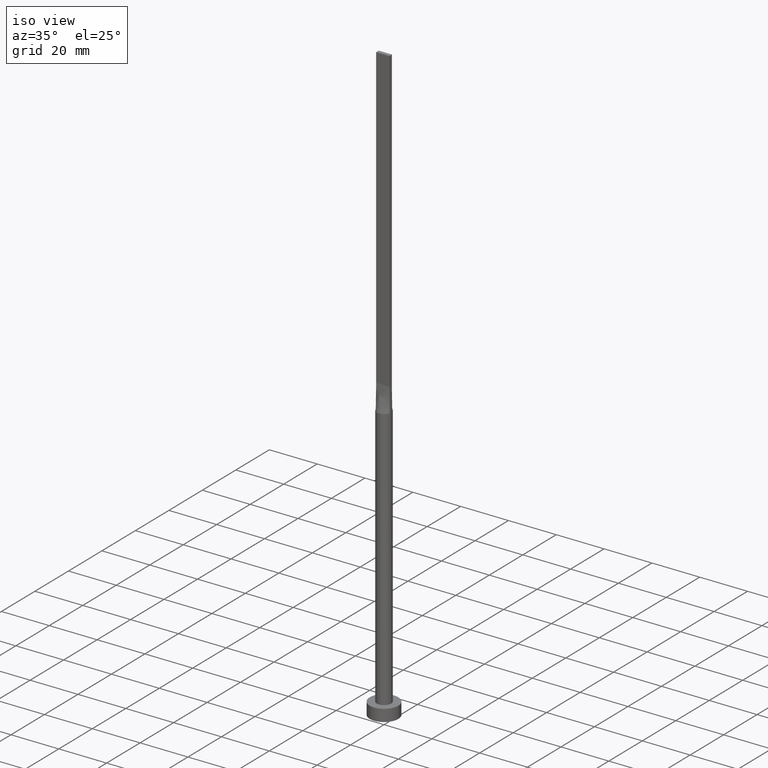
[diagram: clean part render]
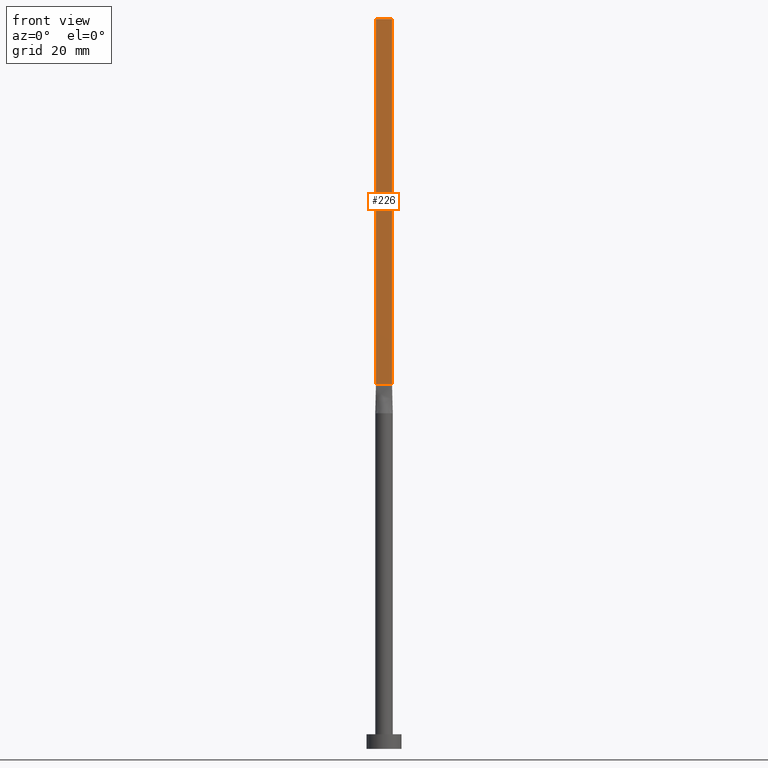
[diagram: tour spotlight — one face highlighted and labeled with its STEP entity id]
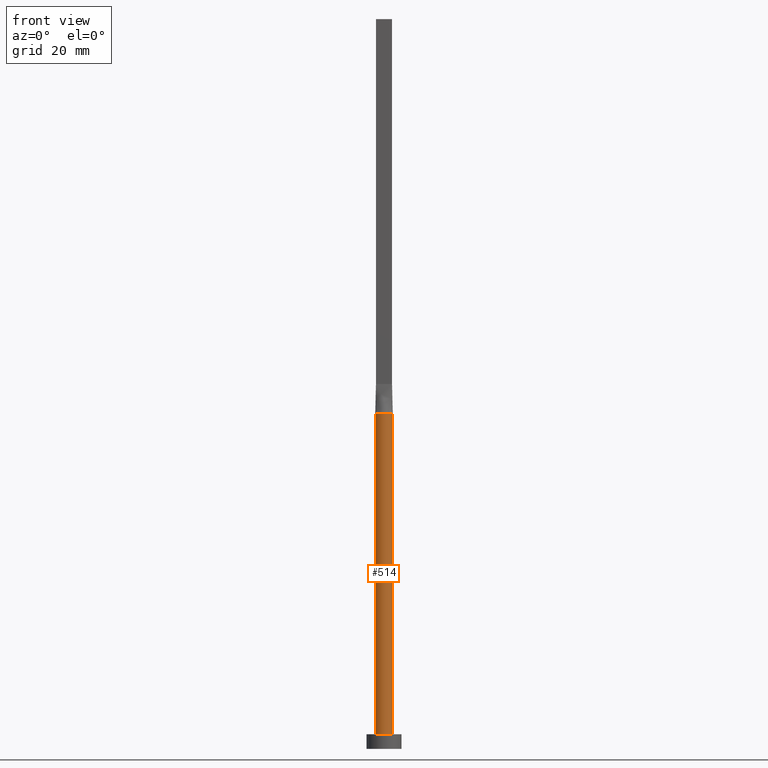
[diagram: tour spotlight — one face highlighted and labeled with its STEP entity id]
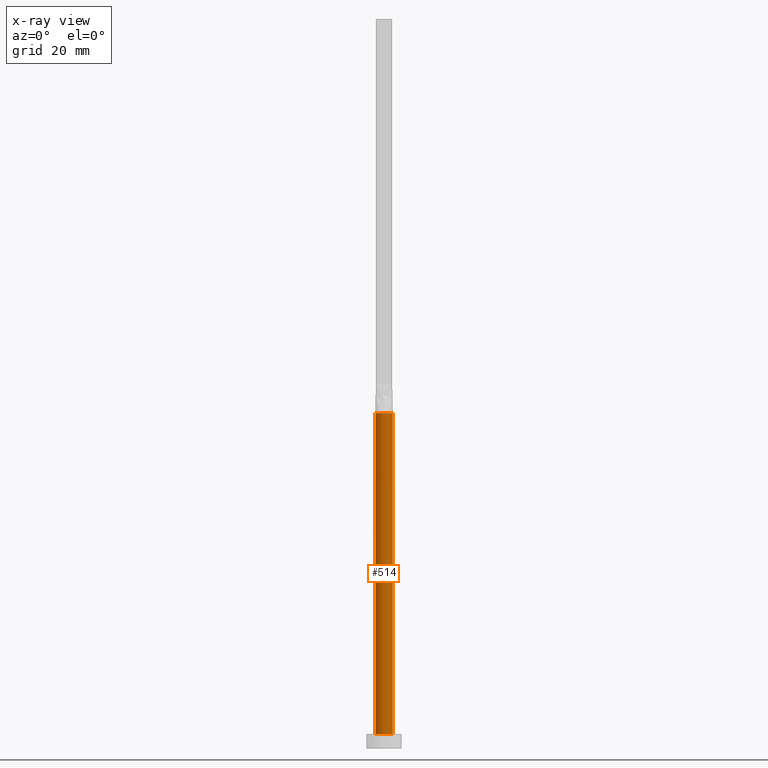
[diagram: x-ray of the same camera — body ghosted, this tour face saturated]
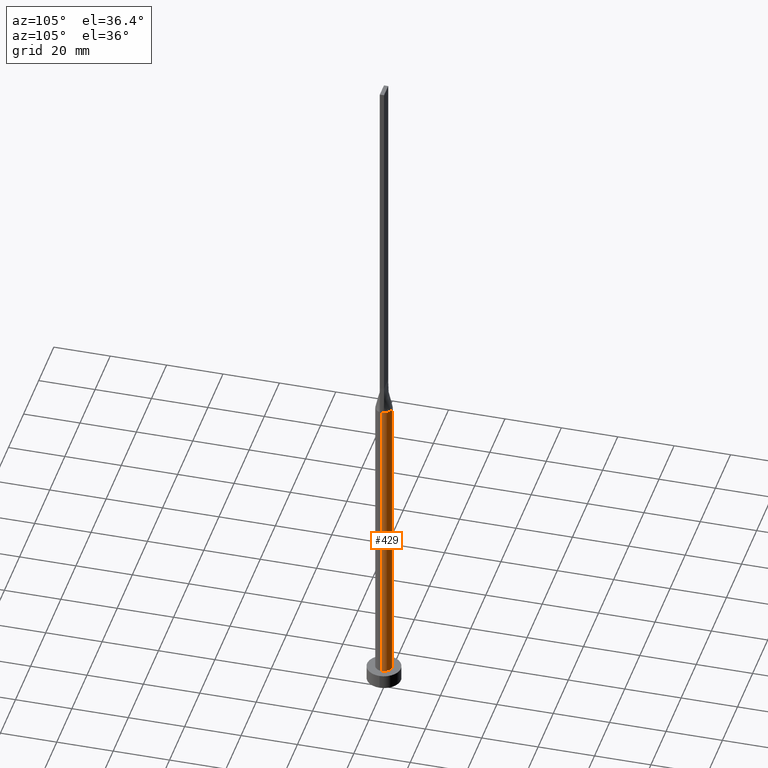
[diagram: tour spotlight — one face highlighted and labeled with its STEP entity id]
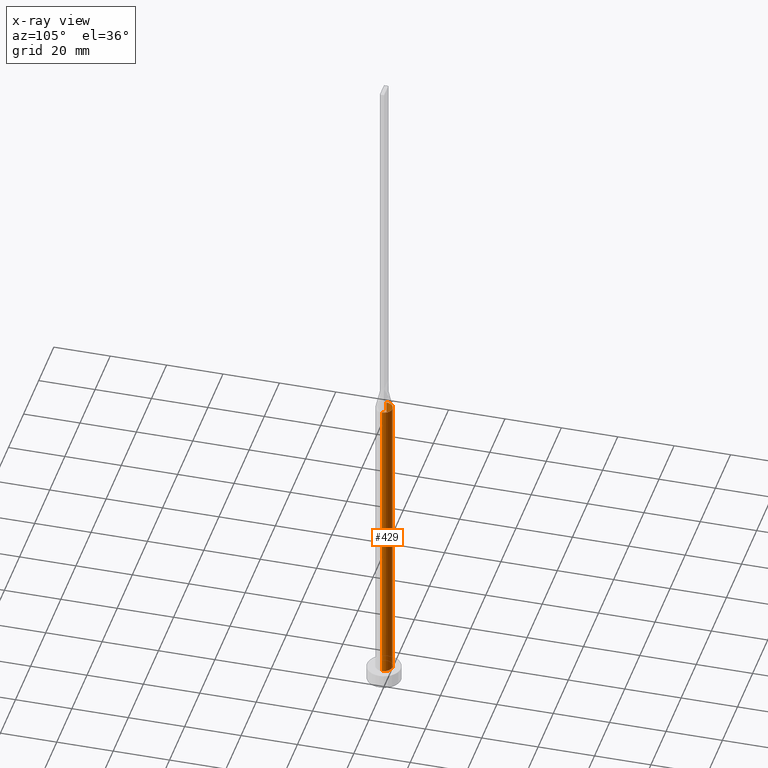
[diagram: x-ray of the same camera — body ghosted, this tour face saturated]
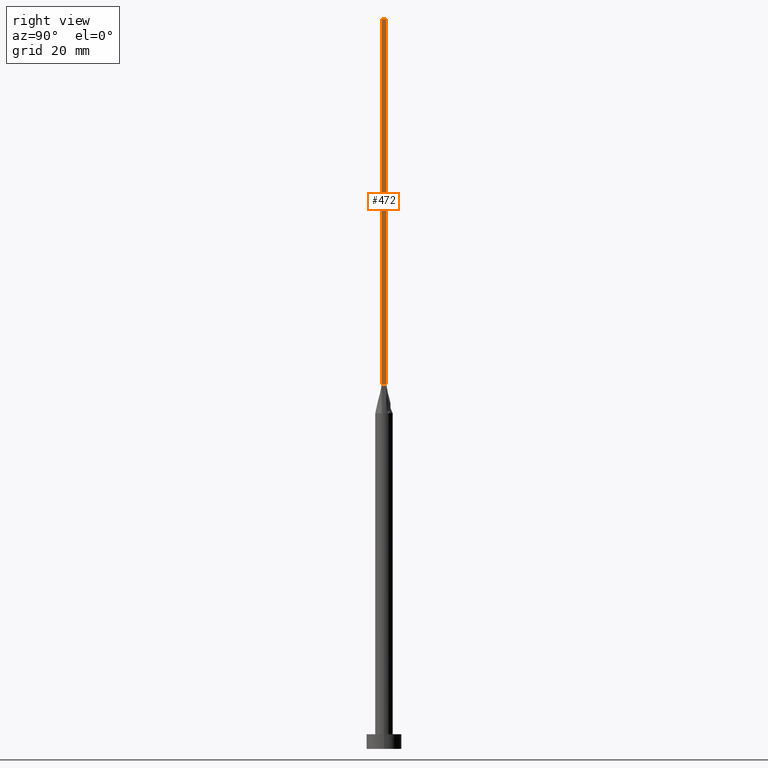
[diagram: tour spotlight — one face highlighted and labeled with its STEP entity id]
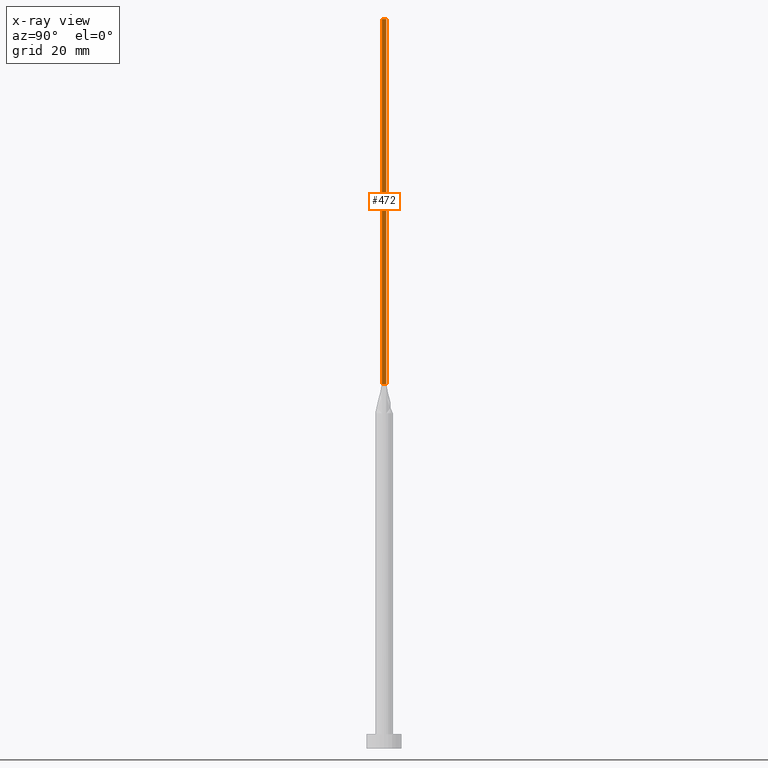
[diagram: x-ray of the same camera — body ghosted, this tour face saturated]
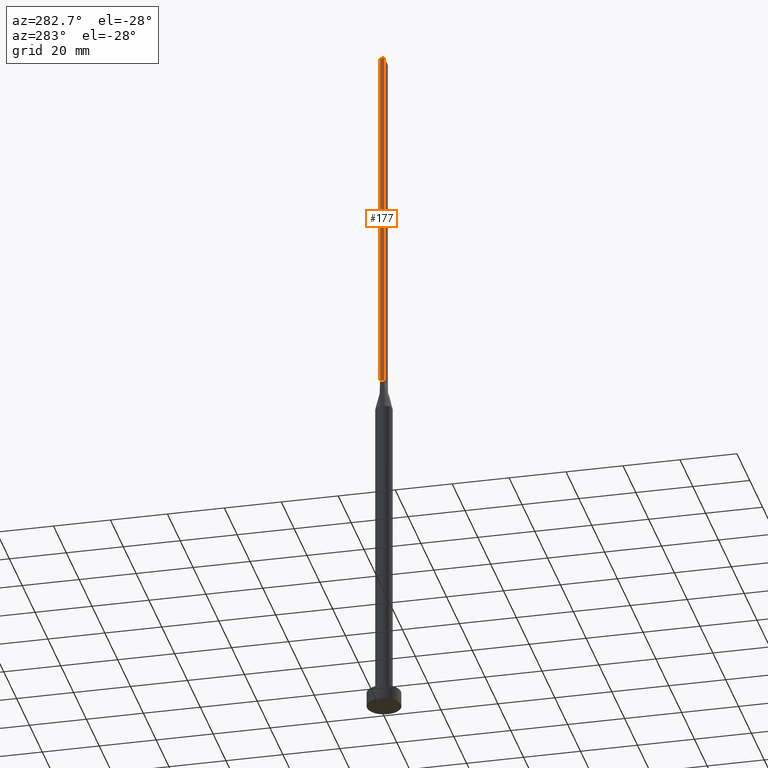
[diagram: tour spotlight — one face highlighted and labeled with its STEP entity id]
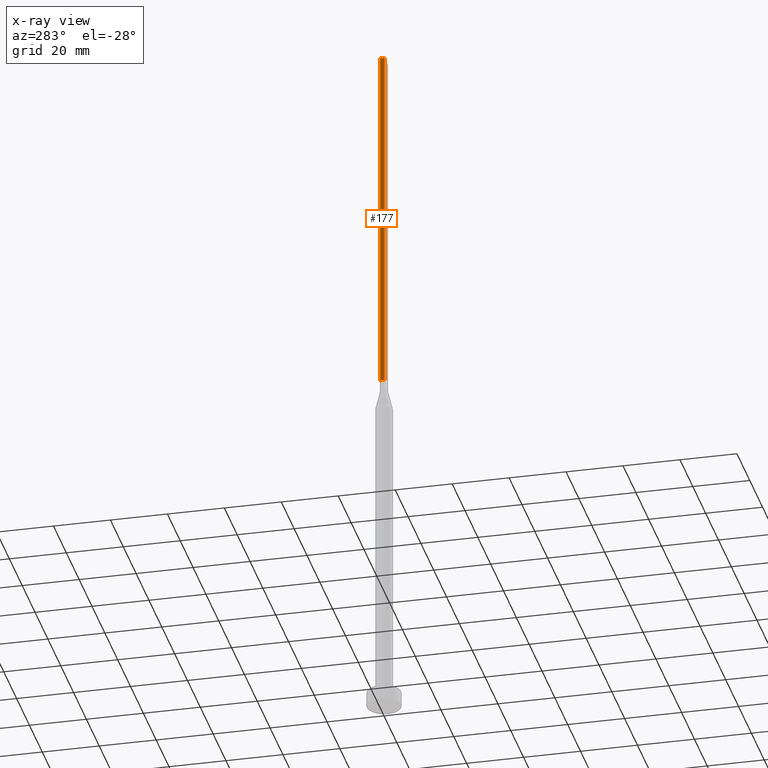
[diagram: x-ray of the same camera — body ghosted, this tour face saturated]
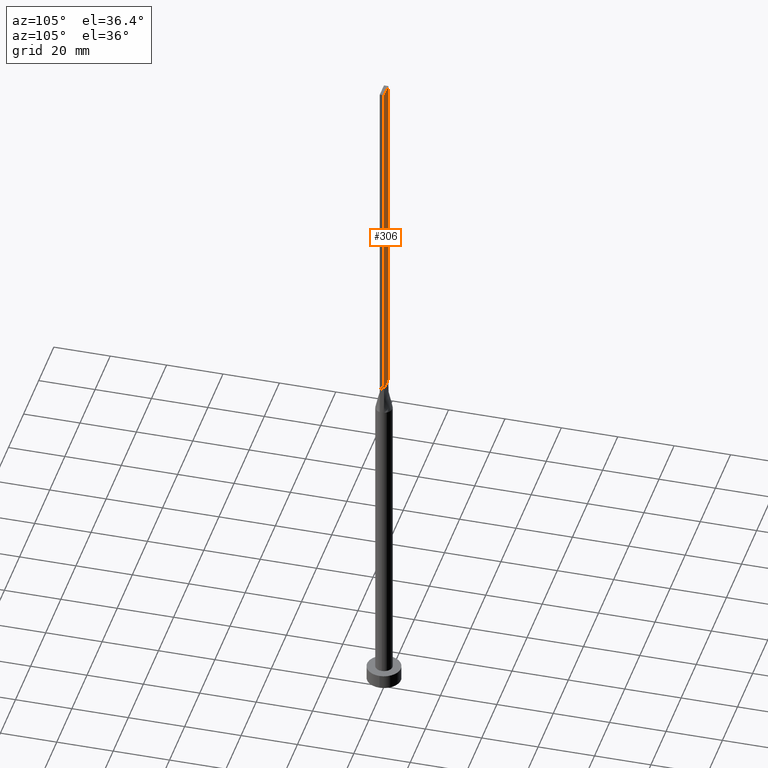
[diagram: tour spotlight — one face highlighted and labeled with its STEP entity id]
A machine part: a face-by-face anatomy tour. The part has 15 B-rep faces; the first image is the clean iso view, then the 6 largest visible faces are spotlighted one at a time (largest first), each with its STEP entity span.

Face 1 — front view, entity #226. In plain terms, the highlighted planar face has unit normal (0, 1, -0).
Definition (entity closure, byte-faithful):
#13 = CARTESIAN_POINT ( 'NONE',  ( 2.750000000000000000, -0.7499999999999997780, 125.0000000000000000 ) ) ;
#15 = CARTESIAN_POINT ( 'NONE',  ( 2.750000000000000000, -0.7499999999999997780, 250.0000000000000000 ) ) ;
#47 = VERTEX_POINT ( 'NONE', #265 ) ;
#63 = FACE_OUTER_BOUND ( 'NONE', #373, .T. ) ;
#67 = PLANE ( 'NONE',  #323 ) ;
#71 = EDGE_CURVE ( 'NONE', #444, #286, #328, .T. ) ;
#95 = VECTOR ( 'NONE', #555, 1000.000000000000000 ) ;
#100 = EDGE_CURVE ( 'NONE', #47, #444, #109, .T. ) ;
#109 = LINE ( 'NONE', #290, #289 ) ;
#115 = CARTESIAN_POINT ( 'NONE',  ( -2.750000000000000000, -0.7499999999999994449, 125.0000000000000000 ) ) ;
#156 = DIRECTION ( 'NONE',  ( -0.000000000000000000, -0.000000000000000000, -1.000000000000000000 ) ) ;
#175 = CARTESIAN_POINT ( 'NONE',  ( -2.750000000000000000, -0.7499999999999994449, 250.0000000000000000 ) ) ;
#199 = EDGE_CURVE ( 'NONE', #47, #224, #387, .T. ) ;
#216 = VECTOR ( 'NONE', #156, 1000.000000000000000 ) ;
#224 = VERTEX_POINT ( 'NONE', #352 ) ;
#226 = ADVANCED_FACE ( 'NONE', ( #63 ), #67, .F. ) ;
#265 = CARTESIAN_POINT ( 'NONE',  ( -2.750000000000000000, -0.7499999999999994449, 250.0000000000000000 ) ) ;
#272 = EDGE_CURVE ( 'NONE', #224, #286, #547, .T. ) ;
#286 = VERTEX_POINT ( 'NONE', #13 ) ;
#289 = VECTOR ( 'NONE', #495, 1000.000000000000000 ) ;
#290 = CARTESIAN_POINT ( 'NONE',  ( -2.750000000000000000, -0.7499999999999994449, 250.0000000000000000 ) ) ;
#313 = ORIENTED_EDGE ( 'NONE', *, *, #199, .T. ) ;
#323 = AXIS2_PLACEMENT_3D ( 'NONE', #419, #382, #548 ) ;
#328 = LINE ( 'NONE', #538, #216 ) ;
#337 = DIRECTION ( 'NONE',  ( 1.000000000000000000, -5.913830031739115543E-17, 0.000000000000000000 ) ) ;
#352 = CARTESIAN_POINT ( 'NONE',  ( -2.750000000000000000, -0.7499999999999994449, 125.0000000000000000 ) ) ;
#373 = EDGE_LOOP ( 'NONE', ( #575, #449, #562, #313 ) ) ;
#382 = DIRECTION ( 'NONE',  ( 5.913830031739115543E-17, 1.000000000000000000, -0.000000000000000000 ) ) ;
#387 = LINE ( 'NONE', #175, #95 ) ;
#419 = CARTESIAN_POINT ( 'NONE',  ( -2.750000000000000000, -0.7499999999999994449, 250.0000000000000000 ) ) ;
#444 = VERTEX_POINT ( 'NONE', #15 ) ;
#449 = ORIENTED_EDGE ( 'NONE', *, *, #71, .F. ) ;
#495 = DIRECTION ( 'NONE',  ( 1.000000000000000000, -5.913830031739115543E-17, 0.000000000000000000 ) ) ;
#496 = VECTOR ( 'NONE', #337, 1000.000000000000000 ) ;
#538 = CARTESIAN_POINT ( 'NONE',  ( 2.750000000000000000, -0.7499999999999997780, 250.0000000000000000 ) ) ;
#547 = LINE ( 'NONE', #115, #496 ) ;
#548 = DIRECTION ( 'NONE',  ( -1.000000000000000000, 5.913830031739115543E-17, 0.000000000000000000 ) ) ;
#555 = DIRECTION ( 'NONE',  ( -0.000000000000000000, -0.000000000000000000, -1.000000000000000000 ) ) ;
#562 = ORIENTED_EDGE ( 'NONE', *, *, #100, .F. ) ;
#575 = ORIENTED_EDGE ( 'NONE', *, *, #272, .T. ) ;

Face 2 — front view, entity #514. An x-ray twin of the same camera follows (body ghosted, this face saturated) — the face is partly hidden behind the body. In plain terms, the highlighted cylindrical surface (edge-blend (fillet) strip) has radius 3 mm, axis along (-0, -0, -1).
Definition (entity closure, byte-faithful):
#6 = LINE ( 'NONE', #159, #24 ) ;
#8 = DIRECTION ( 'NONE',  ( -0.000000000000000000, -0.000000000000000000, -1.000000000000000000 ) ) ;
#16 = VERTEX_POINT ( 'NONE', #431 ) ;
#22 = CYLINDRICAL_SURFACE ( 'NONE', #270, 3.000000000000000444 ) ;
#24 = VECTOR ( 'NONE', #252, 1000.000000000000000 ) ;
#37 = DIRECTION ( 'NONE',  ( 1.000000000000000000, 0.000000000000000000, 0.000000000000000000 ) ) ;
#43 = EDGE_CURVE ( 'NONE', #16, #478, #543, .T. ) ;
#55 = DIRECTION ( 'NONE',  ( 1.000000000000000000, 0.000000000000000000, 0.000000000000000000 ) ) ;
#75 = AXIS2_PLACEMENT_3D ( 'NONE', #474, #435, #84 ) ;
#84 = DIRECTION ( 'NONE',  ( 1.000000000000000000, -5.329070518200751394E-15, 0.000000000000000000 ) ) ;
#88 = DIRECTION ( 'NONE',  ( 0.000000000000000000, 0.000000000000000000, 1.000000000000000000 ) ) ;
#107 = CARTESIAN_POINT ( 'NONE',  ( 0.000000000000000000, 0.000000000000000000, 5.000000000000000000 ) ) ;
#108 = VERTEX_POINT ( 'NONE', #424 ) ;
#125 = CIRCLE ( 'NONE', #295, 3.000000000000000444 ) ;
#159 = CARTESIAN_POINT ( 'NONE',  ( -3.000000000000000444, 0.000000000000000000, 115.0000000000000000 ) ) ;
#160 = VERTEX_POINT ( 'NONE', #436 ) ;
#168 = DIRECTION ( 'NONE',  ( -0.000000000000000000, -0.000000000000000000, -1.000000000000000000 ) ) ;
#171 = DIRECTION ( 'NONE',  ( -1.000000000000000000, 0.000000000000000000, 0.000000000000000000 ) ) ;
#174 = CIRCLE ( 'NONE', #234, 3.000000000000000444 ) ;
#189 = CIRCLE ( 'NONE', #567, 3.000000000000000444 ) ;
#192 = ORIENTED_EDGE ( 'NONE', *, *, #358, .F. ) ;
#196 = CARTESIAN_POINT ( 'NONE',  ( 3.000000000000000888, 4.817174831141495148E-17, 115.0000000000000000 ) ) ;
#205 = CARTESIAN_POINT ( 'NONE',  ( -2.894489875237701959, -0.7894071376467488577, 115.0000000000000000 ) ) ;
#213 = FACE_OUTER_BOUND ( 'NONE', #500, .T. ) ;
#234 = AXIS2_PLACEMENT_3D ( 'NONE', #362, #88, #37 ) ;
#252 = DIRECTION ( 'NONE',  ( -0.000000000000000000, -0.000000000000000000, -1.000000000000000000 ) ) ;
#267 = VERTEX_POINT ( 'NONE', #476 ) ;
#270 = AXIS2_PLACEMENT_3D ( 'NONE', #386, #168, #171 ) ;
#295 = AXIS2_PLACEMENT_3D ( 'NONE', #347, #559, #296 ) ;
#296 = DIRECTION ( 'NONE',  ( 1.000000000000000000, 0.000000000000000000, 0.000000000000000000 ) ) ;
#329 = EDGE_CURVE ( 'NONE', #453, #16, #174, .T. ) ;
#336 = VECTOR ( 'NONE', #8, 1000.000000000000000 ) ;
#347 = CARTESIAN_POINT ( 'NONE',  ( 0.000000000000000000, 0.000000000000000000, 115.0000000000000000 ) ) ;
#358 = EDGE_CURVE ( 'NONE', #267, #453, #125, .T. ) ;
#362 = CARTESIAN_POINT ( 'NONE',  ( 0.000000000000000000, 0.000000000000000000, 115.0000000000000000 ) ) ;
#363 = ORIENTED_EDGE ( 'NONE', *, *, #43, .F. ) ;
#371 = EDGE_CURVE ( 'NONE', #267, #108, #6, .T. ) ;
#377 = CARTESIAN_POINT ( 'NONE',  ( 3.000000000000000444, 3.673940397442060361E-16, 115.0000000000000000 ) ) ;
#386 = CARTESIAN_POINT ( 'NONE',  ( 0.000000000000000000, 0.000000000000000000, 115.0000000000000000 ) ) ;
#392 = ORIENTED_EDGE ( 'NONE', *, *, #479, .F. ) ;
#424 = CARTESIAN_POINT ( 'NONE',  ( -3.000000000000000444, 0.000000000000000000, 5.000000000000000000 ) ) ;
#431 = CARTESIAN_POINT ( 'NONE',  ( 2.894514141151844910, -0.7894138151126538494, 115.0000000000000000 ) ) ;
#435 = DIRECTION ( 'NONE',  ( 0.000000000000000000, 0.000000000000000000, 1.000000000000000000 ) ) ;
#436 = CARTESIAN_POINT ( 'NONE',  ( 3.000000000000000444, 3.673940397442060361E-16, 5.000000000000000000 ) ) ;
#453 = VERTEX_POINT ( 'NONE', #205 ) ;
#457 = DIRECTION ( 'NONE',  ( 0.000000000000000000, 0.000000000000000000, 1.000000000000000000 ) ) ;
#463 = EDGE_CURVE ( 'NONE', #108, #160, #189, .T. ) ;
#474 = CARTESIAN_POINT ( 'NONE',  ( 0.000000000000000000, 0.000000000000000000, 115.0000000000000000 ) ) ;
#476 = CARTESIAN_POINT ( 'NONE',  ( -3.000000000000000000, -1.912111867153115409E-16, 115.0000000000000000 ) ) ;
#478 = VERTEX_POINT ( 'NONE', #196 ) ;
#479 = EDGE_CURVE ( 'NONE', #478, #160, #502, .T. ) ;
#486 = ORIENTED_EDGE ( 'NONE', *, *, #371, .T. ) ;
#500 = EDGE_LOOP ( 'NONE', ( #392, #363, #568, #192, #486, #530 ) ) ;
#502 = LINE ( 'NONE', #377, #336 ) ;
#514 = ADVANCED_FACE ( 'NONE', ( #213 ), #22, .T. ) ;
#530 = ORIENTED_EDGE ( 'NONE', *, *, #463, .T. ) ;
#543 = CIRCLE ( 'NONE', #75, 3.000000000000000444 ) ;
#559 = DIRECTION ( 'NONE',  ( 0.000000000000000000, 0.000000000000000000, 1.000000000000000000 ) ) ;
#567 = AXIS2_PLACEMENT_3D ( 'NONE', #107, #457, #55 ) ;
#568 = ORIENTED_EDGE ( 'NONE', *, *, #329, .F. ) ;

Face 3 — auxiliary view, entity #429. An x-ray twin of the same camera follows (body ghosted, this face saturated) — the face is partly hidden behind the body. In plain terms, the highlighted cylindrical surface (edge-blend (fillet) strip) has radius 3 mm, axis along (-0, -0, -1).
Definition (entity closure, byte-faithful):
#1 = DIRECTION ( 'NONE',  ( 0.000000000000000000, 0.000000000000000000, 1.000000000000000000 ) ) ;
#6 = LINE ( 'NONE', #159, #24 ) ;
#8 = DIRECTION ( 'NONE',  ( -0.000000000000000000, -0.000000000000000000, -1.000000000000000000 ) ) ;
#20 = DIRECTION ( 'NONE',  ( 0.000000000000000000, 0.000000000000000000, 1.000000000000000000 ) ) ;
#24 = VECTOR ( 'NONE', #252, 1000.000000000000000 ) ;
#32 = VERTEX_POINT ( 'NONE', #138 ) ;
#36 = ORIENTED_EDGE ( 'NONE', *, *, #62, .T. ) ;
#42 = B_SPLINE_CURVE_WITH_KNOTS ( 'NONE', 3,
 ( #509, #513, #215, #176, #227, #344, #74, #471, #556, #72, #314, #119, #121, #511, #69, #396, #123, #301 ),
 .UNSPECIFIED., .F., .F.,
 ( 4, 2, 2, 2, 2, 2, 2, 2, 4 ),
 ( 0.000000000000000000, 0.1250000000000000000, 0.2500000000000000000, 0.3750000000000000000, 0.5000000000000000000, 0.6250000000000000000, 0.7500000000000000000, 0.8750000000000000000, 1.000000000000000000 ),
 .UNSPECIFIED. ) ;
#45 = EDGE_LOOP ( 'NONE', ( #395, #491, #36, #368, #581, #401 ) ) ;
#62 = EDGE_CURVE ( 'NONE', #160, #108, #132, .T. ) ;
#69 = CARTESIAN_POINT ( 'NONE',  ( -2.442412046818596139, 1.765588549521969641, 115.0000000000000142 ) ) ;
#70 = CYLINDRICAL_SURFACE ( 'NONE', #181, 3.000000000000000444 ) ;
#72 = CARTESIAN_POINT ( 'NONE',  ( -0.3818979204996078569, 3.000000000000000888, 114.9999999999999858 ) ) ;
#74 = CARTESIAN_POINT ( 'NONE',  ( 1.447928580458859305, 2.653161878569118670, 115.0000000000000142 ) ) ;
#78 = CARTESIAN_POINT ( 'NONE',  ( 0.000000000000000000, 0.000000000000000000, 115.0000000000000000 ) ) ;
#97 = CARTESIAN_POINT ( 'NONE',  ( 0.000000000000000000, 0.000000000000000000, 115.0000000000000000 ) ) ;
#108 = VERTEX_POINT ( 'NONE', #424 ) ;
#113 = CIRCLE ( 'NONE', #450, 3.000000000000000444 ) ;
#119 = CARTESIAN_POINT ( 'NONE',  ( -1.447928580458858416, 2.653161878569119558, 115.0000000000000000 ) ) ;
#120 = CIRCLE ( 'NONE', #473, 3.000000000000000444 ) ;
#121 = CARTESIAN_POINT ( 'NONE',  ( -1.751288851749021491, 2.458468820606022565, 115.0000000000000142 ) ) ;
#123 = CARTESIAN_POINT ( 'NONE',  ( -2.830829925251659329, 1.022044525068634302, 115.0000000000000284 ) ) ;
#132 = CIRCLE ( 'NONE', #365, 3.000000000000000444 ) ;
#138 = CARTESIAN_POINT ( 'NONE',  ( -2.894506632021299541, 0.7894116946786272626, 115.0000000000000000 ) ) ;
#150 = DIRECTION ( 'NONE',  ( 1.000000000000000000, 0.000000000000000000, 0.000000000000000000 ) ) ;
#159 = CARTESIAN_POINT ( 'NONE',  ( -3.000000000000000444, 0.000000000000000000, 115.0000000000000000 ) ) ;
#160 = VERTEX_POINT ( 'NONE', #436 ) ;
#176 = CARTESIAN_POINT ( 'NONE',  ( 2.442412046818595250, 1.765588549521970529, 114.9999999999999858 ) ) ;
#181 = AXIS2_PLACEMENT_3D ( 'NONE', #78, #237, #210 ) ;
#196 = CARTESIAN_POINT ( 'NONE',  ( 3.000000000000000888, 4.817174831141495148E-17, 115.0000000000000000 ) ) ;
#208 = FACE_OUTER_BOUND ( 'NONE', #45, .T. ) ;
#210 = DIRECTION ( 'NONE',  ( -1.000000000000000000, 0.000000000000000000, 0.000000000000000000 ) ) ;
#211 = DIRECTION ( 'NONE',  ( 1.000000000000000000, 0.000000000000000000, 0.000000000000000000 ) ) ;
#215 = CARTESIAN_POINT ( 'NONE',  ( 2.733316749964668446, 1.269511353635831341, 115.0000000000000142 ) ) ;
#218 = CARTESIAN_POINT ( 'NONE',  ( 2.894482401701604424, 0.7894050286368272662, 115.0000000000000000 ) ) ;
#227 = CARTESIAN_POINT ( 'NONE',  ( 2.248179627679386172, 2.014142483996539834, 115.0000000000000142 ) ) ;
#237 = DIRECTION ( 'NONE',  ( -0.000000000000000000, -0.000000000000000000, -1.000000000000000000 ) ) ;
#245 = EDGE_CURVE ( 'NONE', #478, #503, #120, .T. ) ;
#252 = DIRECTION ( 'NONE',  ( -0.000000000000000000, -0.000000000000000000, -1.000000000000000000 ) ) ;
#267 = VERTEX_POINT ( 'NONE', #476 ) ;
#301 = CARTESIAN_POINT ( 'NONE',  ( -2.894506632021299541, 0.7894116946786272626, 115.0000000000000000 ) ) ;
#314 = CARTESIAN_POINT ( 'NONE',  ( -0.7628506052746797383, 2.924692134573155133, 115.0000000000000142 ) ) ;
#336 = VECTOR ( 'NONE', #8, 1000.000000000000000 ) ;
#344 = CARTESIAN_POINT ( 'NONE',  ( 1.751288851749022379, 2.458468820606022565, 114.9999999999999858 ) ) ;
#364 = DIRECTION ( 'NONE',  ( 0.000000000000000000, 0.000000000000000000, 1.000000000000000000 ) ) ;
#365 = AXIS2_PLACEMENT_3D ( 'NONE', #393, #1, #150 ) ;
#368 = ORIENTED_EDGE ( 'NONE', *, *, #371, .F. ) ;
#371 = EDGE_CURVE ( 'NONE', #267, #108, #6, .T. ) ;
#377 = CARTESIAN_POINT ( 'NONE',  ( 3.000000000000000444, 3.673940397442060361E-16, 115.0000000000000000 ) ) ;
#384 = EDGE_CURVE ( 'NONE', #32, #267, #113, .T. ) ;
#393 = CARTESIAN_POINT ( 'NONE',  ( 0.000000000000000000, 0.000000000000000000, 5.000000000000000000 ) ) ;
#395 = ORIENTED_EDGE ( 'NONE', *, *, #245, .F. ) ;
#396 = CARTESIAN_POINT ( 'NONE',  ( -2.733316749964668002, 1.269511353635830453, 115.0000000000000284 ) ) ;
#401 = ORIENTED_EDGE ( 'NONE', *, *, #518, .F. ) ;
#424 = CARTESIAN_POINT ( 'NONE',  ( -3.000000000000000444, 0.000000000000000000, 5.000000000000000000 ) ) ;
#429 = ADVANCED_FACE ( 'NONE', ( #208 ), #70, .T. ) ;
#436 = CARTESIAN_POINT ( 'NONE',  ( 3.000000000000000444, 3.673940397442060361E-16, 5.000000000000000000 ) ) ;
#450 = AXIS2_PLACEMENT_3D ( 'NONE', #454, #20, #211 ) ;
#454 = CARTESIAN_POINT ( 'NONE',  ( 0.000000000000000000, 0.000000000000000000, 115.0000000000000000 ) ) ;
#471 = CARTESIAN_POINT ( 'NONE',  ( 0.7628506052746800714, 2.924692134573154689, 115.0000000000000000 ) ) ;
#473 = AXIS2_PLACEMENT_3D ( 'NONE', #97, #364, #489 ) ;
#476 = CARTESIAN_POINT ( 'NONE',  ( -3.000000000000000000, -1.912111867153115409E-16, 115.0000000000000000 ) ) ;
#478 = VERTEX_POINT ( 'NONE', #196 ) ;
#479 = EDGE_CURVE ( 'NONE', #478, #160, #502, .T. ) ;
#489 = DIRECTION ( 'NONE',  ( 1.000000000000000000, 0.000000000000000000, 0.000000000000000000 ) ) ;
#491 = ORIENTED_EDGE ( 'NONE', *, *, #479, .T. ) ;
#502 = LINE ( 'NONE', #377, #336 ) ;
#503 = VERTEX_POINT ( 'NONE', #218 ) ;
#509 = CARTESIAN_POINT ( 'NONE',  ( 2.894482401701604424, 0.7894050286368272662, 115.0000000000000000 ) ) ;
#511 = CARTESIAN_POINT ( 'NONE',  ( -2.248179627679385728, 2.014142483996540278, 114.9999999999999858 ) ) ;
#513 = CARTESIAN_POINT ( 'NONE',  ( 2.830829925251657997, 1.022044525068634302, 115.0000000000000000 ) ) ;
#518 = EDGE_CURVE ( 'NONE', #503, #32, #42, .T. ) ;
#556 = CARTESIAN_POINT ( 'NONE',  ( 0.3818979204996085230, 3.000000000000001332, 115.0000000000000142 ) ) ;
#581 = ORIENTED_EDGE ( 'NONE', *, *, #384, .F. ) ;

Face 4 — right view, entity #472. An x-ray twin of the same camera follows (body ghosted, this face saturated) — the face is partly hidden behind the body. In plain terms, the highlighted planar face has unit normal (-1, 0, 0).
Definition (entity closure, byte-faithful):
#13 = CARTESIAN_POINT ( 'NONE',  ( 2.750000000000000000, -0.7499999999999997780, 125.0000000000000000 ) ) ;
#15 = CARTESIAN_POINT ( 'NONE',  ( 2.750000000000000000, -0.7499999999999997780, 250.0000000000000000 ) ) ;
#28 = VECTOR ( 'NONE', #254, 1000.000000000000000 ) ;
#50 = ORIENTED_EDGE ( 'NONE', *, *, #466, .F. ) ;
#60 = VECTOR ( 'NONE', #308, 1000.000000000000000 ) ;
#71 = EDGE_CURVE ( 'NONE', #444, #286, #328, .T. ) ;
#76 = LINE ( 'NONE', #355, #60 ) ;
#116 = FACE_OUTER_BOUND ( 'NONE', #416, .T. ) ;
#156 = DIRECTION ( 'NONE',  ( -0.000000000000000000, -0.000000000000000000, -1.000000000000000000 ) ) ;
#162 = DIRECTION ( 'NONE',  ( -1.000000000000000000, 0.000000000000000000, 0.000000000000000000 ) ) ;
#165 = LINE ( 'NONE', #338, #28 ) ;
#194 = DIRECTION ( 'NONE',  ( -0.000000000000000000, -0.000000000000000000, -1.000000000000000000 ) ) ;
#197 = VERTEX_POINT ( 'NONE', #299 ) ;
#200 = AXIS2_PLACEMENT_3D ( 'NONE', #372, #162, #335 ) ;
#216 = VECTOR ( 'NONE', #156, 1000.000000000000000 ) ;
#230 = EDGE_CURVE ( 'NONE', #286, #317, #165, .T. ) ;
#254 = DIRECTION ( 'NONE',  ( -0.000000000000000000, 1.000000000000000000, -0.000000000000000000 ) ) ;
#286 = VERTEX_POINT ( 'NONE', #13 ) ;
#292 = PLANE ( 'NONE',  #200 ) ;
#294 = CARTESIAN_POINT ( 'NONE',  ( 2.750000000000000000, 0.7500000000000002220, 250.0000000000000000 ) ) ;
#299 = CARTESIAN_POINT ( 'NONE',  ( 2.750000000000000000, 0.7500000000000002220, 250.0000000000000000 ) ) ;
#308 = DIRECTION ( 'NONE',  ( 0.000000000000000000, 1.000000000000000000, 0.000000000000000000 ) ) ;
#317 = VERTEX_POINT ( 'NONE', #402 ) ;
#327 = ORIENTED_EDGE ( 'NONE', *, *, #71, .T. ) ;
#328 = LINE ( 'NONE', #538, #216 ) ;
#332 = LINE ( 'NONE', #294, #505 ) ;
#335 = DIRECTION ( 'NONE',  ( 0.000000000000000000, 0.000000000000000000, 1.000000000000000000 ) ) ;
#338 = CARTESIAN_POINT ( 'NONE',  ( 2.750000000000000000, 0.7500000000000002220, 125.0000000000000000 ) ) ;
#355 = CARTESIAN_POINT ( 'NONE',  ( 2.750000000000000000, -0.7499999999999997780, 250.0000000000000000 ) ) ;
#372 = CARTESIAN_POINT ( 'NONE',  ( 2.750000000000000000, -0.7499999999999997780, 250.0000000000000000 ) ) ;
#380 = ORIENTED_EDGE ( 'NONE', *, *, #565, .F. ) ;
#402 = CARTESIAN_POINT ( 'NONE',  ( 2.750000000000000000, 0.7500000000000002220, 125.0000000000000000 ) ) ;
#416 = EDGE_LOOP ( 'NONE', ( #523, #50, #380, #327 ) ) ;
#444 = VERTEX_POINT ( 'NONE', #15 ) ;
#466 = EDGE_CURVE ( 'NONE', #197, #317, #332, .T. ) ;
#472 = ADVANCED_FACE ( 'NONE', ( #116 ), #292, .F. ) ;
#505 = VECTOR ( 'NONE', #194, 1000.000000000000000 ) ;
#523 = ORIENTED_EDGE ( 'NONE', *, *, #230, .T. ) ;
#538 = CARTESIAN_POINT ( 'NONE',  ( 2.750000000000000000, -0.7499999999999997780, 250.0000000000000000 ) ) ;
#565 = EDGE_CURVE ( 'NONE', #444, #197, #76, .T. ) ;

Face 5 — auxiliary view, entity #177. An x-ray twin of the same camera follows (body ghosted, this face saturated) — the face is partly hidden behind the body. In plain terms, the highlighted planar face has unit normal (1, 0, -0).
Definition (entity closure, byte-faithful):
#5 = ORIENTED_EDGE ( 'NONE', *, *, #411, .T. ) ;
#14 = ORIENTED_EDGE ( 'NONE', *, *, #191, .F. ) ;
#17 = CARTESIAN_POINT ( 'NONE',  ( -2.750000000000000000, 0.7500000000000002220, 125.0000000000000000 ) ) ;
#25 = CARTESIAN_POINT ( 'NONE',  ( -2.750000000000000000, 0.7500000000000002220, 250.0000000000000000 ) ) ;
#47 = VERTEX_POINT ( 'NONE', #265 ) ;
#73 = VECTOR ( 'NONE', #541, 1000.000000000000000 ) ;
#81 = ORIENTED_EDGE ( 'NONE', *, *, #470, .T. ) ;
#90 = VECTOR ( 'NONE', #524, 1000.000000000000000 ) ;
#95 = VECTOR ( 'NONE', #555, 1000.000000000000000 ) ;
#133 = VERTEX_POINT ( 'NONE', #17 ) ;
#175 = CARTESIAN_POINT ( 'NONE',  ( -2.750000000000000000, -0.7499999999999994449, 250.0000000000000000 ) ) ;
#177 = ADVANCED_FACE ( 'NONE', ( #179 ), #256, .F. ) ;
#179 = FACE_OUTER_BOUND ( 'NONE', #357, .T. ) ;
#191 = EDGE_CURVE ( 'NONE', #202, #47, #214, .T. ) ;
#199 = EDGE_CURVE ( 'NONE', #47, #224, #387, .T. ) ;
#202 = VERTEX_POINT ( 'NONE', #262 ) ;
#214 = LINE ( 'NONE', #221, #307 ) ;
#221 = CARTESIAN_POINT ( 'NONE',  ( -2.750000000000000000, 0.7500000000000002220, 250.0000000000000000 ) ) ;
#224 = VERTEX_POINT ( 'NONE', #352 ) ;
#256 = PLANE ( 'NONE',  #354 ) ;
#262 = CARTESIAN_POINT ( 'NONE',  ( -2.750000000000000000, 0.7500000000000002220, 250.0000000000000000 ) ) ;
#265 = CARTESIAN_POINT ( 'NONE',  ( -2.750000000000000000, -0.7499999999999994449, 250.0000000000000000 ) ) ;
#303 = DIRECTION ( 'NONE',  ( -0.000000000000000000, 0.000000000000000000, -1.000000000000000000 ) ) ;
#307 = VECTOR ( 'NONE', #517, 1000.000000000000000 ) ;
#350 = CARTESIAN_POINT ( 'NONE',  ( -2.750000000000000000, 0.7500000000000002220, 125.0000000000000000 ) ) ;
#352 = CARTESIAN_POINT ( 'NONE',  ( -2.750000000000000000, -0.7499999999999994449, 125.0000000000000000 ) ) ;
#354 = AXIS2_PLACEMENT_3D ( 'NONE', #25, #557, #303 ) ;
#357 = EDGE_LOOP ( 'NONE', ( #5, #521, #14, #81 ) ) ;
#385 = LINE ( 'NONE', #350, #90 ) ;
#387 = LINE ( 'NONE', #175, #95 ) ;
#411 = EDGE_CURVE ( 'NONE', #133, #224, #385, .T. ) ;
#412 = LINE ( 'NONE', #544, #73 ) ;
#470 = EDGE_CURVE ( 'NONE', #202, #133, #412, .T. ) ;
#517 = DIRECTION ( 'NONE',  ( 0.000000000000000000, -1.000000000000000000, 0.000000000000000000 ) ) ;
#521 = ORIENTED_EDGE ( 'NONE', *, *, #199, .F. ) ;
#524 = DIRECTION ( 'NONE',  ( 0.000000000000000000, -1.000000000000000000, 0.000000000000000000 ) ) ;
#541 = DIRECTION ( 'NONE',  ( -0.000000000000000000, -0.000000000000000000, -1.000000000000000000 ) ) ;
#544 = CARTESIAN_POINT ( 'NONE',  ( -2.750000000000000000, 0.7500000000000002220, 250.0000000000000000 ) ) ;
#555 = DIRECTION ( 'NONE',  ( -0.000000000000000000, -0.000000000000000000, -1.000000000000000000 ) ) ;
#557 = DIRECTION ( 'NONE',  ( 1.000000000000000000, 0.000000000000000000, -0.000000000000000000 ) ) ;

Face 6 — auxiliary view, entity #306. In plain terms, the highlighted planar face has unit normal (0, -1, 0).
Definition (entity closure, byte-faithful):
#17 = CARTESIAN_POINT ( 'NONE',  ( -2.750000000000000000, 0.7500000000000002220, 125.0000000000000000 ) ) ;
#66 = LINE ( 'NONE', #164, #376 ) ;
#73 = VECTOR ( 'NONE', #541, 1000.000000000000000 ) ;
#133 = VERTEX_POINT ( 'NONE', #17 ) ;
#158 = ORIENTED_EDGE ( 'NONE', *, *, #470, .F. ) ;
#164 = CARTESIAN_POINT ( 'NONE',  ( 2.750000000000000000, 0.7500000000000002220, 250.0000000000000000 ) ) ;
#170 = CARTESIAN_POINT ( 'NONE',  ( -2.750000000000000000, 0.7500000000000002220, 125.0000000000000000 ) ) ;
#194 = DIRECTION ( 'NONE',  ( -0.000000000000000000, -0.000000000000000000, -1.000000000000000000 ) ) ;
#197 = VERTEX_POINT ( 'NONE', #299 ) ;
#202 = VERTEX_POINT ( 'NONE', #262 ) ;
#204 = PLANE ( 'NONE',  #413 ) ;
#231 = DIRECTION ( 'NONE',  ( 0.000000000000000000, -1.000000000000000000, 0.000000000000000000 ) ) ;
#235 = DIRECTION ( 'NONE',  ( 0.000000000000000000, -0.000000000000000000, -1.000000000000000000 ) ) ;
#244 = ORIENTED_EDGE ( 'NONE', *, *, #466, .T. ) ;
#250 = DIRECTION ( 'NONE',  ( -1.000000000000000000, 0.000000000000000000, 0.000000000000000000 ) ) ;
#253 = FACE_OUTER_BOUND ( 'NONE', #460, .T. ) ;
#257 = LINE ( 'NONE', #170, #345 ) ;
#262 = CARTESIAN_POINT ( 'NONE',  ( -2.750000000000000000, 0.7500000000000002220, 250.0000000000000000 ) ) ;
#281 = EDGE_CURVE ( 'NONE', #197, #202, #66, .T. ) ;
#294 = CARTESIAN_POINT ( 'NONE',  ( 2.750000000000000000, 0.7500000000000002220, 250.0000000000000000 ) ) ;
#299 = CARTESIAN_POINT ( 'NONE',  ( 2.750000000000000000, 0.7500000000000002220, 250.0000000000000000 ) ) ;
#306 = ADVANCED_FACE ( 'NONE', ( #253 ), #204, .F. ) ;
#317 = VERTEX_POINT ( 'NONE', #402 ) ;
#332 = LINE ( 'NONE', #294, #505 ) ;
#345 = VECTOR ( 'NONE', #552, 1000.000000000000000 ) ;
#376 = VECTOR ( 'NONE', #250, 1000.000000000000000 ) ;
#402 = CARTESIAN_POINT ( 'NONE',  ( 2.750000000000000000, 0.7500000000000002220, 125.0000000000000000 ) ) ;
#412 = LINE ( 'NONE', #544, #73 ) ;
#413 = AXIS2_PLACEMENT_3D ( 'NONE', #445, #231, #235 ) ;
#445 = CARTESIAN_POINT ( 'NONE',  ( 2.750000000000000000, 0.7500000000000002220, 250.0000000000000000 ) ) ;
#460 = EDGE_LOOP ( 'NONE', ( #563, #158, #545, #244 ) ) ;
#466 = EDGE_CURVE ( 'NONE', #197, #317, #332, .T. ) ;
#470 = EDGE_CURVE ( 'NONE', #202, #133, #412, .T. ) ;
#505 = VECTOR ( 'NONE', #194, 1000.000000000000000 ) ;
#541 = DIRECTION ( 'NONE',  ( -0.000000000000000000, -0.000000000000000000, -1.000000000000000000 ) ) ;
#544 = CARTESIAN_POINT ( 'NONE',  ( -2.750000000000000000, 0.7500000000000002220, 250.0000000000000000 ) ) ;
#545 = ORIENTED_EDGE ( 'NONE', *, *, #281, .F. ) ;
#551 = EDGE_CURVE ( 'NONE', #317, #133, #257, .T. ) ;
#552 = DIRECTION ( 'NONE',  ( -1.000000000000000000, -0.000000000000000000, -0.000000000000000000 ) ) ;
#563 = ORIENTED_EDGE ( 'NONE', *, *, #551, .T. ) ;